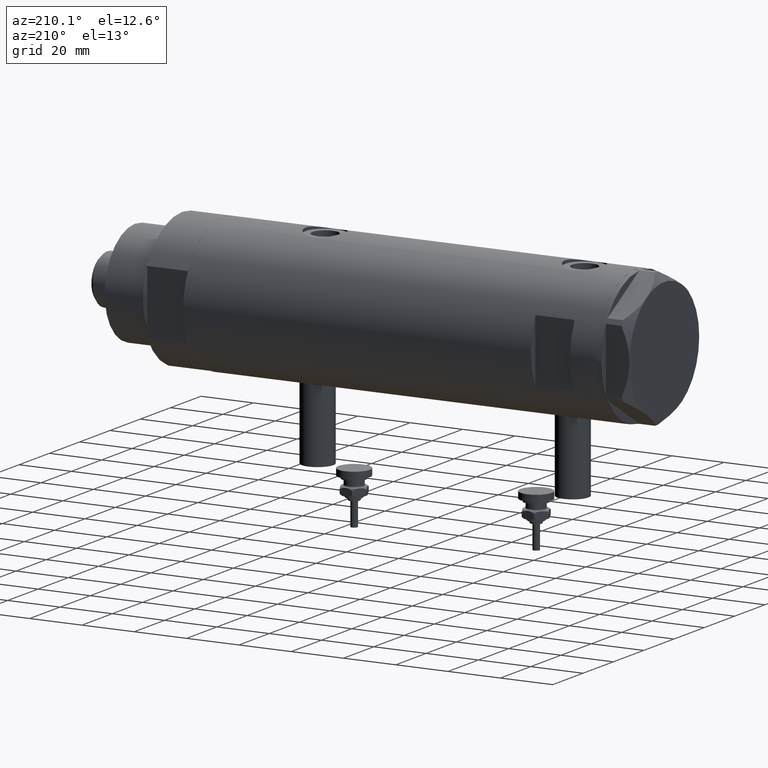
[diagram: clean part render]
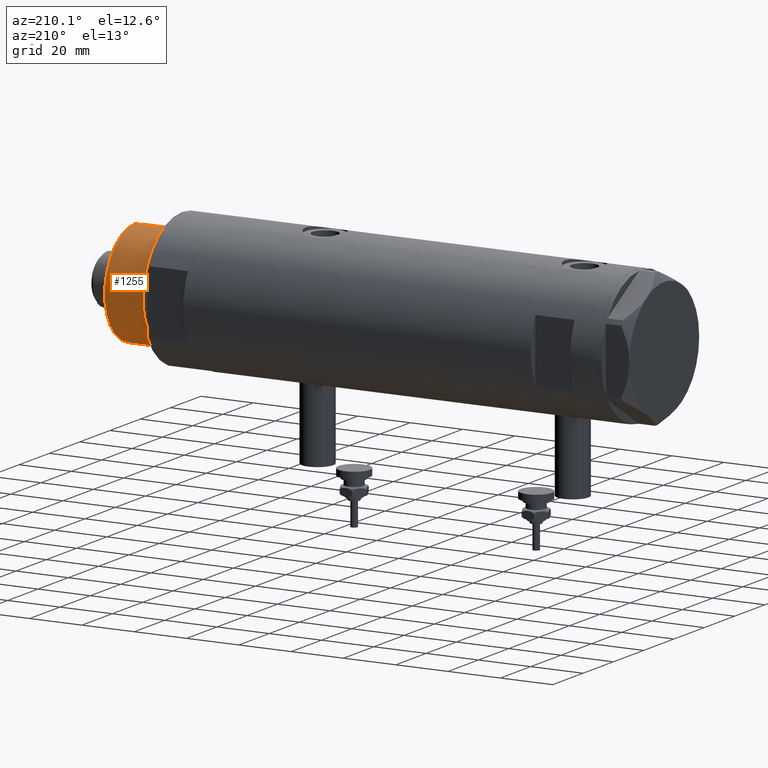
[diagram: same view with one face highlighted and labeled with its STEP entity id]
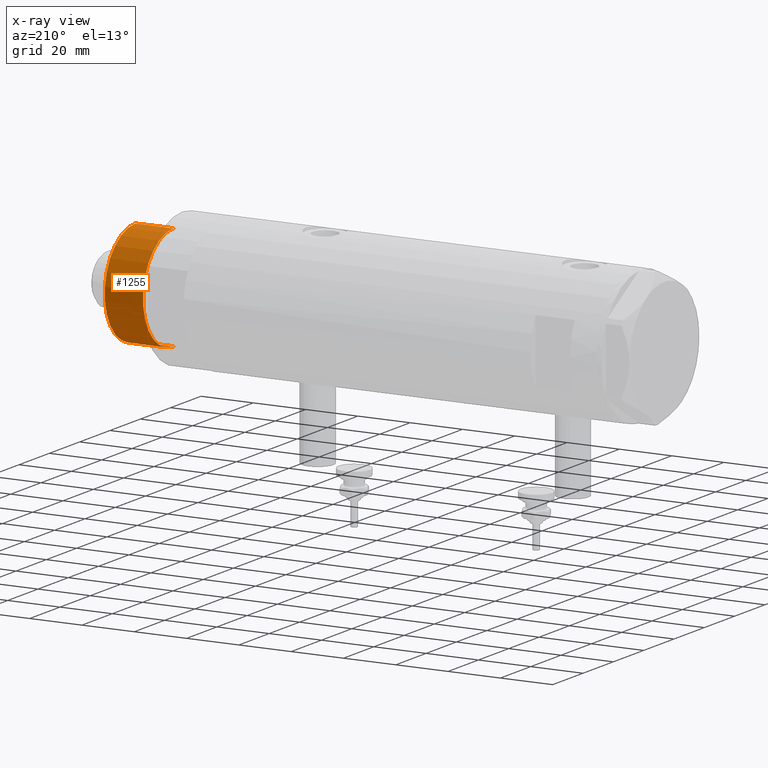
[diagram: x-ray of the same camera — body ghosted, the highlighted face saturated]
A machine part, auxiliary view. The second image highlights one B-rep face of the part: STEP entity #1255.
The next image is the same camera in x-ray: the body ghosted, the highlighted face saturated — about 0% of this face is hidden behind the body in this view.
In plain terms, the highlighted cylindrical surface (partial cylindrical patch) has radius 20 mm, axis along (-1, -0, 0).
Its self-contained STEP definition (entity closure, byte-faithful):
#227 = CARTESIAN_POINT ( 'NONE',  ( -19.99999999999999645, 0.000000000000000000, 33.50000000000000000 ) ) ;
#276 = EDGE_CURVE ( 'NONE', #1904, #1444, #3446, .T. ) ;
#303 = CARTESIAN_POINT ( 'NONE',  ( 0.000000000000000000, 0.000000000000000000, 18.87384048104053846 ) ) ;
#442 = CARTESIAN_POINT ( 'NONE',  ( -19.99999999999999645, 0.000000000000000000, 18.87384048104053846 ) ) ;
#820 = AXIS2_PLACEMENT_3D ( 'NONE', #1025, #2650, #2051 ) ;
#908 = VECTOR ( 'NONE', #2003, 1000.000000000000000 ) ;
#925 = CARTESIAN_POINT ( 'NONE',  ( 19.99999999999999645, 2.449293598294706119E-15, 33.50000000000000000 ) ) ;
#982 = VERTEX_POINT ( 'NONE', #227 ) ;
#1025 = CARTESIAN_POINT ( 'NONE',  ( 0.000000000000000000, 0.000000000000000000, 33.50000000000000000 ) ) ;
#1255 = ADVANCED_FACE ( 'NONE', ( #5692 ), #1717, .T. ) ;
#1380 = EDGE_CURVE ( 'NONE', #982, #1444, #4404, .T. ) ;
#1444 = VERTEX_POINT ( 'NONE', #442 ) ;
#1717 = CYLINDRICAL_SURFACE ( 'NONE', #2029, 19.99999999999999645 ) ;
#1783 = DIRECTION ( 'NONE',  ( -0.000000000000000000, -0.000000000000000000, -1.000000000000000000 ) ) ;
#1904 = VERTEX_POINT ( 'NONE', #4658 ) ;
#2003 = DIRECTION ( 'NONE',  ( -0.000000000000000000, -0.000000000000000000, -1.000000000000000000 ) ) ;
#2029 = AXIS2_PLACEMENT_3D ( 'NONE', #4247, #2279, #5664 ) ;
#2051 = DIRECTION ( 'NONE',  ( 1.000000000000000000, 0.000000000000000000, 0.000000000000000000 ) ) ;
#2279 = DIRECTION ( 'NONE',  ( -0.000000000000000000, -0.000000000000000000, -1.000000000000000000 ) ) ;
#2301 = DIRECTION ( 'NONE',  ( -0.000000000000000000, -0.000000000000000000, 1.000000000000000000 ) ) ;
#2368 = CIRCLE ( 'NONE', #820, 19.99999999999999645 ) ;
#2650 = DIRECTION ( 'NONE',  ( 0.000000000000000000, 0.000000000000000000, 1.000000000000000000 ) ) ;
#2876 = CARTESIAN_POINT ( 'NONE',  ( -19.99999999999999645, 0.000000000000000000, 33.50000000000000000 ) ) ;
#3027 = AXIS2_PLACEMENT_3D ( 'NONE', #303, #2301, #3184 ) ;
#3184 = DIRECTION ( 'NONE',  ( 1.000000000000000000, 0.000000000000000000, 0.000000000000000000 ) ) ;
#3304 = ORIENTED_EDGE ( 'NONE', *, *, #1380, .F. ) ;
#3446 = CIRCLE ( 'NONE', #3027, 19.99999999999999645 ) ;
#3609 = LINE ( 'NONE', #5560, #4519 ) ;
#3897 = EDGE_LOOP ( 'NONE', ( #5567, #5998, #4352, #3304 ) ) ;
#4247 = CARTESIAN_POINT ( 'NONE',  ( 0.000000000000000000, 0.000000000000000000, 33.50000000000000000 ) ) ;
#4352 = ORIENTED_EDGE ( 'NONE', *, *, #276, .T. ) ;
#4404 = LINE ( 'NONE', #2876, #908 ) ;
#4418 = VERTEX_POINT ( 'NONE', #925 ) ;
#4519 = VECTOR ( 'NONE', #1783, 1000.000000000000000 ) ;
#4622 = EDGE_CURVE ( 'NONE', #4418, #1904, #3609, .T. ) ;
#4658 = CARTESIAN_POINT ( 'NONE',  ( 19.99999999999999645, 2.449293598294706119E-15, 18.87384048104053846 ) ) ;
#4861 = EDGE_CURVE ( 'NONE', #4418, #982, #2368, .T. ) ;
#5560 = CARTESIAN_POINT ( 'NONE',  ( 19.99999999999999645, 2.449293598294706119E-15, 33.50000000000000000 ) ) ;
#5567 = ORIENTED_EDGE ( 'NONE', *, *, #4861, .F. ) ;
#5664 = DIRECTION ( 'NONE',  ( -1.000000000000000000, 0.000000000000000000, 0.000000000000000000 ) ) ;
#5692 = FACE_OUTER_BOUND ( 'NONE', #3897, .T. ) ;
#5998 = ORIENTED_EDGE ( 'NONE', *, *, #4622, .T. ) ;